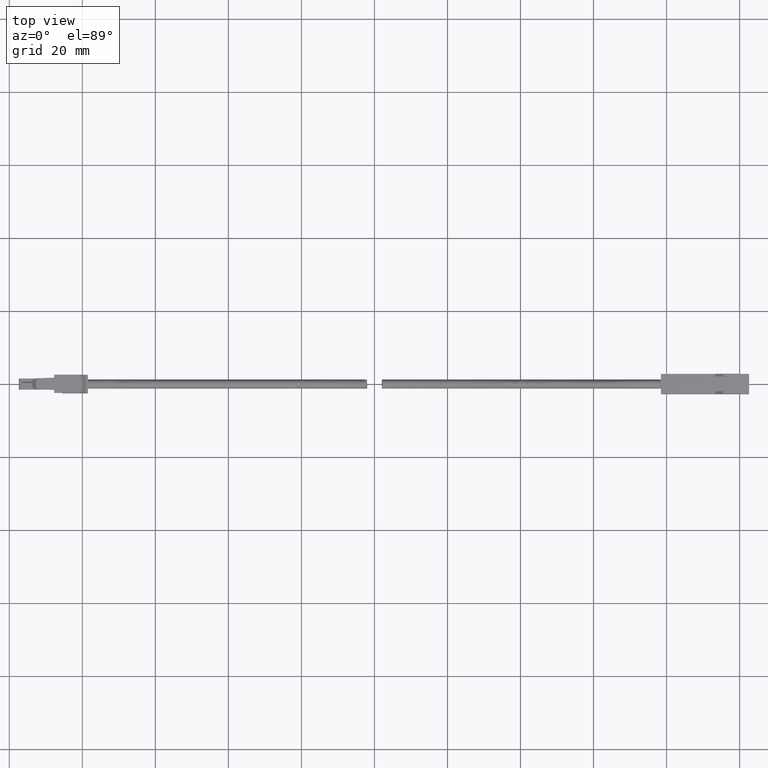
[diagram: clean part render]
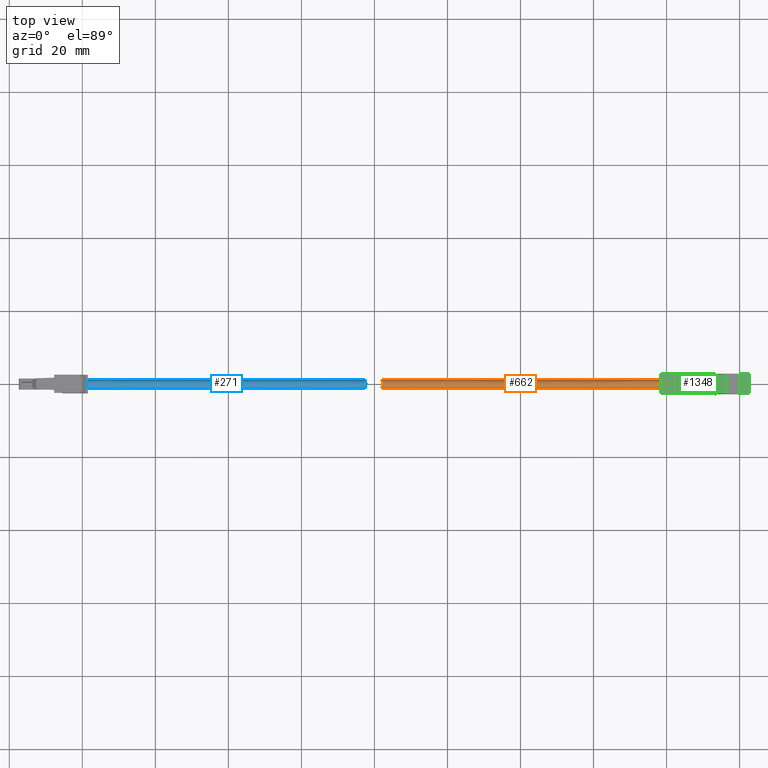
[diagram: same view with three faces highlighted in distinct colors, each labeled with its STEP entity id]
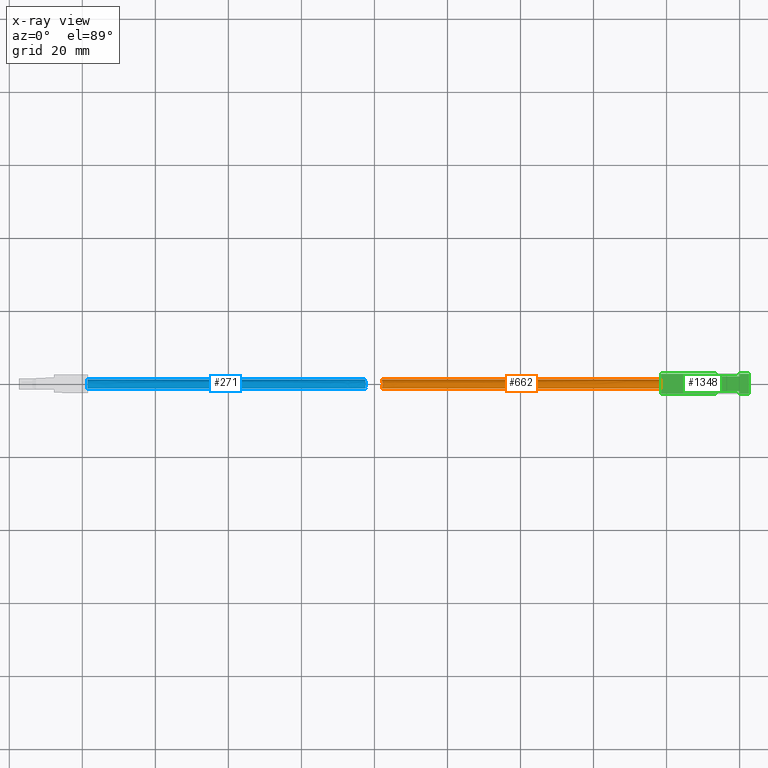
[diagram: x-ray of the same camera — body ghosted, the three highlighted faces saturated]
A machine part, top view with three faces highlighted in distinct colors.
The next image is the same camera in x-ray (body ghosted, the three faces saturated) — at least one of them is partly hidden behind the body in this view.
Their STEP definitions:

[orange] entity #662 — the highlighted face is a freeform B-spline surface patch.
#355=CARTESIAN_POINT('',(2.300000000000000,1.249999999999530,0.0));
#356=VERTEX_POINT('',#355);
#364=CARTESIAN_POINT('',(2.197703587288286,-1.246146683450683,0.098073915507565));
#365=VERTEX_POINT('',#364);
#375=CARTESIAN_POINT('',(2.197703587288286,-1.246146683450683,0.098073915507565));
#376=CARTESIAN_POINT('',(2.185782413458197,-1.245072543111019,0.111723513627514));
#377=CARTESIAN_POINT('',(2.174324032663256,-1.243740976383480,0.125777891205696));
#378=CARTESIAN_POINT('',(2.150152399444206,-1.240150894217720,0.157575884010219));
#379=CARTESIAN_POINT('',(2.137587745248053,-1.237746024540212,0.175586971182269));
#380=CARTESIAN_POINT('',(2.102391724294224,-1.229086220610575,0.230718967803821));
#381=CARTESIAN_POINT('',(2.082384264155761,-1.221451035759141,0.268638884079529));
#382=CARTESIAN_POINT('',(2.057204897359141,-1.206645900087304,0.326967884832802));
#383=CARTESIAN_POINT('',(2.049620526136303,-1.201151445529674,0.346653849750198));
#384=CARTESIAN_POINT('',(2.036047233575883,-1.188936580613859,0.386475733568241));
#385=CARTESIAN_POINT('',(2.030039941074703,-1.182178500881842,0.406705290797513));
#386=CARTESIAN_POINT('',(2.014672526968635,-1.160324731184317,0.466869904066858));
#387=CARTESIAN_POINT('',(2.007834449006401,-1.143597052290673,0.506532353235339));
#388=CARTESIAN_POINT('',(2.000047393343356,-1.105650132167661,0.584745266418900));
#389=CARTESIAN_POINT('',(1.999139374120442,-1.084237957922289,0.623571422937116));
#390=CARTESIAN_POINT('',(2.002452720152221,-1.037997499711809,0.697835552834510));
#391=CARTESIAN_POINT('',(2.006615844592895,-1.013126269333457,0.733450871297083));
#392=CARTESIAN_POINT('',(2.018983361681790,-0.959942353971602,0.801801531177356));
#393=CARTESIAN_POINT('',(2.027253799614945,-0.931480907841922,0.834658308277487));
#394=CARTESIAN_POINT('',(2.056235751460511,-0.843091401251553,0.926791121989664));
#395=CARTESIAN_POINT('',(2.081159588162684,-0.779673038228312,0.980549406130930));
#396=CARTESIAN_POINT('',(2.122311456749226,-0.677473750735115,1.051306838405805));
#397=CARTESIAN_POINT('',(2.136717463016618,-0.642094983922010,1.073271701790091));
#398=CARTESIAN_POINT('',(2.165507032297764,-0.570012268132028,1.113231391514373));
#399=CARTESIAN_POINT('',(2.179946675246814,-0.533179737340535,1.131331175330846));
#400=CARTESIAN_POINT('',(2.208008731032904,-0.457673552880847,1.163926880269215));
#401=CARTESIAN_POINT('',(2.221636055987656,-0.419002006019938,1.178423597482248));
#402=CARTESIAN_POINT('',(2.246950718593400,-0.339394740158768,1.203767448427925));
#403=CARTESIAN_POINT('',(2.258685979961521,-0.298210537216375,1.214653057001899));
#404=CARTESIAN_POINT('',(2.278317908500439,-0.214896548693261,1.232124608312110));
#405=CARTESIAN_POINT('',(2.286259964890770,-0.172646552497843,1.238772931898442));
#406=CARTESIAN_POINT('',(2.294418586061707,-0.108213386999522,1.245494334762032));
#407=CARTESIAN_POINT('',(2.296513083925073,-0.086559173581023,1.247191216253681));
#408=CARTESIAN_POINT('',(2.299319051363220,-0.042870537355216,1.249456097419914));
#409=CARTESIAN_POINT('',(2.300024922533960,-0.020747115649442,1.250019977845877));
#410=CARTESIAN_POINT('',(2.299896816676956,0.088845394679168,1.249917279566500));
#411=CARTESIAN_POINT('',(2.287958062092116,0.174469806817529,1.240728774839407));
#412=CARTESIAN_POINT('',(2.248202641099639,0.342205259053392,1.205297960501625));
#413=CARTESIAN_POINT('',(2.221695874154388,0.420912699519135,1.179868940310255));
#414=CARTESIAN_POINT('',(2.179596984373239,0.534086613929089,1.130902752438372));
#415=CARTESIAN_POINT('',(2.165129930116893,0.570970122158411,1.112746225082192));
#416=CARTESIAN_POINT('',(2.136236119684083,0.643286178403536,1.072564187698500));
#417=CARTESIAN_POINT('',(2.121941959521678,0.678386024216780,1.050710106541648));
#418=CARTESIAN_POINT('',(2.081026654996795,0.780014238944487,0.980242375140573));
#419=CARTESIAN_POINT('',(2.056160459278299,0.843286603496433,0.926621590684601));
#420=CARTESIAN_POINT('',(2.027174050815090,0.931741560899679,0.834369600480567));
#421=CARTESIAN_POINT('',(2.018920977522754,0.960182550180733,0.801507586211124));
#422=CARTESIAN_POINT('',(2.006603433026471,1.013208108167032,0.733330942128864));
#423=CARTESIAN_POINT('',(2.002456435175281,1.038004796193899,0.697816243338594));
#424=CARTESIAN_POINT('',(1.999144475239803,1.084108456566257,0.623787080002903));
#425=CARTESIAN_POINT('',(2.000041568638022,1.105573423945592,0.584888415088782));
#426=CARTESIAN_POINT('',(2.007806643422295,1.143509469319251,0.506727883125431));
#427=CARTESIAN_POINT('',(2.014612332009462,1.160135241973207,0.467297094493345));
#428=CARTESIAN_POINT('',(2.029730351707489,1.181788428166470,0.407824962718867));
#429=CARTESIAN_POINT('',(2.035590467644217,1.188457625566541,0.387946725776752));
#430=CARTESIAN_POINT('',(2.049079550934947,1.200727675405017,0.348119576097644));
#431=CARTESIAN_POINT('',(2.056757930026439,1.206349438906517,0.328072181703095));
#432=CARTESIAN_POINT('',(2.082092541801532,1.221344511017660,0.269181878610023));
#433=CARTESIAN_POINT('',(2.102106823552305,1.228973274423302,0.231269455601058));
#434=CARTESIAN_POINT('',(2.148500555071759,1.240472930651238,0.158391219727604));
#435=CARTESIAN_POINT('',(2.175154113231522,1.244350471988203,0.123146480366651));
#436=CARTESIAN_POINT('',(2.233699889804818,1.249092581529827,0.057800306142103));
#437=CARTESIAN_POINT('',(2.265545421407985,1.250000000017405,0.027621087124736));
#438=CARTESIAN_POINT('',(2.300000000000000,1.249999999999530,0.0));
#439=B_SPLINE_CURVE_WITH_KNOTS('',3,(#375,#376,#377,#378,#379,#380,#381,#382,#383,#384,#385,#386,#387,#388,#389,#390,#391,#392,#393,#394,#395,#396,#397,#398,#399,#400,#401,#402,#403,#404,#405,#406,#407,#408,#409,#410,#411,#412,#413,#414,#415,#416,#417,#418,#419,#420,#421,#422,#423,#424,#425,#426,#427,#428,#429,#430,#431,#432,#433,#434,#435,#436,#437,#438),.UNSPECIFIED.,.F.,.U.,(4,2,2,2,2,2,2,2,2,2,2,2,2,2,2,2,2,2,2,2,2,2,2,2,2,2,2,2,2,2,2,4),(0.033844311896491,0.046875000000000,0.062500000000000,0.093749999999999,0.109374999999999,0.124999999999999,0.156249999999999,0.187499999999999,0.218749999999999,0.249999999999999,0.312499999999999,0.343749999999998,0.374999999999998,0.406249999999998,0.437499999999998,0.468749999999998,0.484374999999998,0.499999999999998,0.562499999999998,0.624999999999998,0.656249999999998,0.687499999999999,0.749999999999999,0.781249999999999,0.812499999999999,0.843749999999999,0.874999999999999,0.890624999999999,0.906249999999999,0.937499999999999,0.968750000000000,1.0),.UNSPECIFIED.);
#440=EDGE_CURVE('',#365,#356,#439,.T.);
#460=CARTESIAN_POINT('',(2.402294953251520,1.246146447890810,-0.098073873213585));
#461=VERTEX_POINT('',#460);
#462=CARTESIAN_POINT('',(2.402294953251520,1.246146447890810,-0.098073873213585));
#463=CARTESIAN_POINT('',(2.400070123243016,1.246347270529622,-0.095525523526263));
#464=CARTESIAN_POINT('',(2.397829347704910,1.246538975255356,-0.092991821916617));
#465=CARTESIAN_POINT('',(2.366300117965674,1.249092716896253,-0.057800310032570));
#466=CARTESIAN_POINT('',(2.334454582486053,1.250000067771847,-0.027621089067394));
#467=CARTESIAN_POINT('',(2.300000000000000,1.249999999999530,0.0));
#468=B_SPLINE_CURVE_WITH_KNOTS('',3,(#462,#463,#464,#465,#466,#467),.UNSPECIFIED.,.F.,.U.,(4,2,4),(0.966341268069300,0.968750000000000,1.0),.UNSPECIFIED.);
#469=EDGE_CURVE('',#461,#356,#468,.T.);
#560=CARTESIAN_POINT('',(78.542103939511691,1.246146667071423,-0.098073870866729));
#561=VERTEX_POINT('',#560);
#562=CARTESIAN_POINT('',(78.542103939511691,1.246146667071423,-0.098073870866729));
#563=CARTESIAN_POINT('',(2.402294953251520,1.246146447890810,-0.098073873213585));
#564=QUASI_UNIFORM_CURVE('',1,(#562,#563),.UNSPECIFIED.,.F.,.U.);
#565=EDGE_CURVE('',#561,#461,#564,.T.);
#582=CARTESIAN_POINT('',(78.542103939511691,-1.246146667071423,0.098073870866729));
#583=VERTEX_POINT('',#582);
#599=CARTESIAN_POINT('',(78.542103939511691,-1.246146667071423,0.098073870866729));
#600=CARTESIAN_POINT('',(2.197703587288286,-1.246146683450683,0.098073915507565));
#601=QUASI_UNIFORM_CURVE('',1,(#599,#600),.UNSPECIFIED.,.F.,.U.);
#602=EDGE_CURVE('',#583,#365,#601,.T.);
#608=CARTESIAN_POINT('',(80.455560768116257,-1.246146667166409,0.098073869659806));
#609=CARTESIAN_POINT('',(80.455560768116257,-1.148072797506603,1.344220536826216));
#610=CARTESIAN_POINT('',(80.455560768116257,0.098073869659806,1.246146667166409));
#611=CARTESIAN_POINT('',(80.455560768116257,1.344220536826216,1.148072797506603));
#612=CARTESIAN_POINT('',(80.455560768116257,1.246146667166409,-0.098073869659806));
#613=CARTESIAN_POINT('',(0.042537546009797,-1.246146667166409,0.098073869659806));
#614=CARTESIAN_POINT('',(0.042537546009797,-1.148072797506603,1.344220536826216));
#615=CARTESIAN_POINT('',(0.042537546009797,0.098073869659806,1.246146667166409));
#616=CARTESIAN_POINT('',(0.042537546009797,1.344220536826216,1.148072797506603));
#617=CARTESIAN_POINT('',(0.042537546009797,1.246146667166409,-0.098073869659806));
#625=(BOUNDED_SURFACE()B_SPLINE_SURFACE(2,1,((#608,#613),(#609,#614),(#610,#615),(#611,#616),(#612,#617)),.UNSPECIFIED.,.F.,.F.,.U.)B_SPLINE_SURFACE_WITH_KNOTS((3,2,3),(2,2),(0.0,1.570796326794897,3.141592653589793),(0.0,80.413023222106474),.UNSPECIFIED.)GEOMETRIC_REPRESENTATION_ITEM()RATIONAL_B_SPLINE_SURFACE(((1.0,1.0),(0.707106781186548,0.707106781186548),(1.0,1.0),(0.707106781186548,0.707106781186548),(1.0,1.0)))REPRESENTATION_ITEM('')SURFACE());
#626=ORIENTED_EDGE('',*,*,#469,.T.);
#627=ORIENTED_EDGE('',*,*,#440,.F.);
#628=ORIENTED_EDGE('',*,*,#602,.F.);
#629=CARTESIAN_POINT('',(78.542103939511691,0.0,1.250000000000000));
#630=VERTEX_POINT('',#629);
#631=CARTESIAN_POINT('',(78.542103939511691,0.0,1.250000000000000));
#632=CARTESIAN_POINT('',(78.542103939511676,-1.155488113450180,1.250000000000000));
#633=CARTESIAN_POINT('',(78.542103939511705,-1.246146667071423,0.098073870866729));
#641=(BOUNDED_CURVE()B_SPLINE_CURVE(2,(#631,#632,#633),.UNSPECIFIED.,.F.,.U.)B_SPLINE_CURVE_WITH_KNOTS((3,3),(0.0,0.236331300466738),.UNSPECIFIED.)CURVE()GEOMETRIC_REPRESENTATION_ITEM()RATIONAL_B_SPLINE_CURVE((1.0,0.723120658799712,0.969723355825326))REPRESENTATION_ITEM(''));
#642=EDGE_CURVE('',#630,#583,#641,.T.);
#643=ORIENTED_EDGE('',*,*,#642,.F.);
#644=CARTESIAN_POINT('',(78.542103939511691,1.246146667071423,-0.098073870866729));
#645=CARTESIAN_POINT('',(78.542103939511676,1.250000000000000,-0.049112634365849));
#646=CARTESIAN_POINT('',(78.542103939511691,1.250000000000000,0.0));
#647=CARTESIAN_POINT('',(78.542103939511691,1.250000000000000,1.250000000000000));
#648=CARTESIAN_POINT('',(78.542103939511691,0.0,1.250000000000000));
#656=(BOUNDED_CURVE()B_SPLINE_CURVE(2,(#644,#645,#646,#647,#648),.UNSPECIFIED.,.F.,.U.)B_SPLINE_CURVE_WITH_KNOTS((3,2,3),(0.736331300466738,0.750000000000000,1.0),.UNSPECIFIED.)CURVE()GEOMETRIC_REPRESENTATION_ITEM()RATIONAL_B_SPLINE_CURVE((0.969723355825326,0.983986122386836,1.0,0.707106781186548,1.0))REPRESENTATION_ITEM(''));
#657=EDGE_CURVE('',#561,#630,#656,.T.);
#658=ORIENTED_EDGE('',*,*,#657,.F.);
#659=ORIENTED_EDGE('',*,*,#565,.T.);
#660=EDGE_LOOP('',(#626,#627,#628,#643,#658,#659));
#661=FACE_OUTER_BOUND('',#660,.T.);
#662=ADVANCED_FACE('',(#661),#625,.T.);

[blue] entity #271 — the highlighted face is a freeform B-spline surface patch.
#21=CARTESIAN_POINT('',(-2.300000000000000,-1.250000000000306,-5.140745E-017));
#22=VERTEX_POINT('',#21);
#28=CARTESIAN_POINT('',(-2.197703587288286,-1.246146683450683,-0.098073915507565));
#29=VERTEX_POINT('',#28);
#30=CARTESIAN_POINT('',(-2.300000000000000,-1.250000000000306,-5.140745E-017));
#31=CARTESIAN_POINT('',(-2.265584432712960,-1.249999994447209,-0.027589798652399));
#32=CARTESIAN_POINT('',(-2.233909581820482,-1.249092285933007,-0.057621688510491));
#33=CARTESIAN_POINT('',(-2.202468764679368,-1.246564187051494,-0.092654896907182));
#34=CARTESIAN_POINT('',(-2.200077003932020,-1.246360537160404,-0.095356383921207));
#35=CARTESIAN_POINT('',(-2.197703587288286,-1.246146683450683,-0.098073915507565));
#36=B_SPLINE_CURVE_WITH_KNOTS('',3,(#30,#31,#32,#33,#34,#35),.UNSPECIFIED.,.F.,.U.,(4,2,4),(0.0,0.031250000000000,0.033844311896491),.UNSPECIFIED.);
#37=EDGE_CURVE('',#22,#29,#36,.T.);
#124=CARTESIAN_POINT('',(-2.402294953251520,1.246146447890810,0.098073873213586));
#125=VERTEX_POINT('',#124);
#135=CARTESIAN_POINT('',(-2.300000000000000,-1.250000000000306,-5.140745E-017));
#136=CARTESIAN_POINT('',(-2.334415558930241,-1.249999999782653,0.027589806405144));
#137=CARTESIAN_POINT('',(-2.366090401520643,-1.249092296492798,0.057621703971694));
#138=CARTESIAN_POINT('',(-2.409636504318490,-1.245590840231304,0.106143359183186));
#139=CARTESIAN_POINT('',(-2.423487587592960,-1.244066017152474,0.122899119174809));
#140=CARTESIAN_POINT('',(-2.449847573671176,-1.240150910194515,0.157575909052635));
#141=CARTESIAN_POINT('',(-2.462412227898396,-1.237746040192025,0.175586996221835));
#142=CARTESIAN_POINT('',(-2.497608248968650,-1.229086235155734,0.230718992823241));
#143=CARTESIAN_POINT('',(-2.517615709214768,-1.221451049398411,0.268638909070330));
#144=CARTESIAN_POINT('',(-2.542795076226767,-1.206645912062528,0.326967909753720));
#145=CARTESIAN_POINT('',(-2.550379447530393,-1.201151456899290,0.346653874643324));
#146=CARTESIAN_POINT('',(-2.563952740272077,-1.188936590660330,0.386475758395973));
#147=CARTESIAN_POINT('',(-2.569960032874304,-1.182178510206865,0.406705315587414));
#148=CARTESIAN_POINT('',(-2.585327447309269,-1.160324738206229,0.466869928729789));
#149=CARTESIAN_POINT('',(-2.592165525525853,-1.143597057585973,0.506532377795442));
#150=CARTESIAN_POINT('',(-2.599952581770363,-1.105650133608498,0.584745290736037));
#151=CARTESIAN_POINT('',(-2.600860601323395,-1.084237957216325,0.623571447112780));
#152=CARTESIAN_POINT('',(-2.597547256007922,-1.037997494417213,0.697835576697276));
#153=CARTESIAN_POINT('',(-2.593384131954063,-1.013126261592226,0.733450894988217));
#154=CARTESIAN_POINT('',(-2.581016615694896,-0.959942341034504,0.801801554495890));
#155=CARTESIAN_POINT('',(-2.572746178206998,-0.931480892141381,0.834658331393960));
#156=CARTESIAN_POINT('',(-2.543764227747229,-0.843091377010901,0.926791144472087));
#157=CARTESIAN_POINT('',(-2.518840392043102,-0.779673007912647,0.980549428150282));
#158=CARTESIAN_POINT('',(-2.477688525068735,-0.677473710682709,1.051306859670641));
#159=CARTESIAN_POINT('',(-2.463282519360044,-0.642094940507480,1.073271722792414));
#160=CARTESIAN_POINT('',(-2.434492951218176,-0.570012217880555,1.113231411979777));
#161=CARTESIAN_POINT('',(-2.420053308851730,-0.533179683601956,1.131331195520901));
#162=CARTESIAN_POINT('',(-2.391991254260621,-0.457673492002885,1.163926899893389));
#163=CARTESIAN_POINT('',(-2.378363929918218,-0.419001941489913,1.178423616815902));
#164=CARTESIAN_POINT('',(-2.353049268573393,-0.339394668115961,1.203767467162727));
#165=CARTESIAN_POINT('',(-2.341314007857779,-0.298210461289424,1.214653075426495));
#166=CARTESIAN_POINT('',(-2.321682080638917,-0.214896464909678,1.232124626109042));
#167=CARTESIAN_POINT('',(-2.313740024918036,-0.172646464730374,1.238772949377020));
#168=CARTESIAN_POINT('',(-2.305581404767879,-0.108213293154224,1.245494351755451));
#169=CARTESIAN_POINT('',(-2.303486907247544,-0.086559077692779,1.247191233084107));
#170=CARTESIAN_POINT('',(-2.300680940501408,-0.042870437344194,1.249456113921650));
#171=CARTESIAN_POINT('',(-2.299975069681060,-0.020747013550179,1.250019994181247));
#172=CARTESIAN_POINT('',(-2.300103177273586,0.088845507125705,1.249917295078182));
#173=CARTESIAN_POINT('',(-2.312041933213653,0.174469927358565,1.240728789709128));
#174=CARTESIAN_POINT('',(-2.351797356861058,0.342205395450165,1.205297974113589));
#175=CARTESIAN_POINT('',(-2.378304125052234,0.420912843354053,1.179868953331734));
#176=CARTESIAN_POINT('',(-2.420403016626764,0.534086768433411,1.130902764606755));
#177=CARTESIAN_POINT('',(-2.434870071467895,0.570970280135437,1.112746236971855));
#178=CARTESIAN_POINT('',(-2.463763883048179,0.643286343176670,1.072564199039716));
#179=CARTESIAN_POINT('',(-2.478058043767998,0.678386192282009,1.050710117615653));
#180=CARTESIAN_POINT('',(-2.518973349908552,0.780014416517481,0.980242385437134));
#181=CARTESIAN_POINT('',(-2.543839546635283,0.843286786956162,0.926621600492056));
#182=CARTESIAN_POINT('',(-2.572825956513268,0.931741752515702,0.834369609592844));
#183=CARTESIAN_POINT('',(-2.581079030261468,0.960182744405683,0.801507595097768));
#184=CARTESIAN_POINT('',(-2.593396575609951,1.013208307224264,0.733330950589890));
#185=CARTESIAN_POINT('',(-2.597543573860860,1.038004997494155,0.697816251597986));
#186=CARTESIAN_POINT('',(-2.600855534542359,1.084108661997282,0.623787087881243));
#187=CARTESIAN_POINT('',(-2.599958441493047,1.105573631277870,0.584888422786299));
#188=CARTESIAN_POINT('',(-2.592193367328989,1.143509679961792,0.506727890495606));
#189=CARTESIAN_POINT('',(-2.585387679015604,1.160135454039038,0.467297101715792));
#190=CARTESIAN_POINT('',(-2.570269659677452,1.181788642039894,0.407824969741750));
#191=CARTESIAN_POINT('',(-2.564409543852199,1.188457839987844,0.387946732736792));
#192=CARTESIAN_POINT('',(-2.550920460767935,1.200727890815177,0.348119582939089));
#193=CARTESIAN_POINT('',(-2.543242081771798,1.206349654759160,0.328072188488557));
#194=CARTESIAN_POINT('',(-2.517907470253411,1.221344728017567,0.269181885241032));
#195=CARTESIAN_POINT('',(-2.497893188636704,1.228973491958467,0.231269462145962));
#196=CARTESIAN_POINT('',(-2.453287458318561,1.240029955436990,0.161199932273177));
#197=CARTESIAN_POINT('',(-2.428934243903847,1.243741809379859,0.128586871063241));
#198=CARTESIAN_POINT('',(-2.402294953251520,1.246146447890810,0.098073873213586));
#199=B_SPLINE_CURVE_WITH_KNOTS('',3,(#135,#136,#137,#138,#139,#140,#141,#142,#143,#144,#145,#146,#147,#148,#149,#150,#151,#152,#153,#154,#155,#156,#157,#158,#159,#160,#161,#162,#163,#164,#165,#166,#167,#168,#169,#170,#171,#172,#173,#174,#175,#176,#177,#178,#179,#180,#181,#182,#183,#184,#185,#186,#187,#188,#189,#190,#191,#192,#193,#194,#195,#196,#197,#198),.UNSPECIFIED.,.F.,.U.,(4,2,2,2,2,2,2,2,2,2,2,2,2,2,2,2,2,2,2,2,2,2,2,2,2,2,2,2,2,2,2,4),(0.0,0.031250000000000,0.046875000000000,0.062499999999999,0.093749999999999,0.109374999999999,0.124999999999999,0.156249999999999,0.187499999999999,0.218749999999999,0.249999999999999,0.312499999999999,0.343749999999999,0.374999999999999,0.406249999999999,0.437499999999999,0.468749999999999,0.484374999999999,0.499999999999999,0.562499999999999,0.624999999999999,0.656249999999999,0.687499999999999,0.750000000000000,0.781250000000000,0.812500000000000,0.843750000000000,0.875000000000000,0.890625000000000,0.906250000000000,0.937500000000000,0.966341268069300),.UNSPECIFIED.);
#200=EDGE_CURVE('',#22,#125,#199,.T.);
#205=CARTESIAN_POINT('',(-80.455560768116257,1.246146667166409,0.098073869659816));
#206=CARTESIAN_POINT('',(-80.455560768116257,1.148072797506603,1.344220536826225));
#207=CARTESIAN_POINT('',(-80.455560768116257,-0.098073869659806,1.246146667166419));
#208=CARTESIAN_POINT('',(-80.455560768116257,-1.344220536826216,1.148072797506613));
#209=CARTESIAN_POINT('',(-80.455560768116257,-1.246146667166409,-0.098073869659796));
#210=CARTESIAN_POINT('',(-0.042537546009797,1.246146667166409,0.098073869659806));
#211=CARTESIAN_POINT('',(-0.042537546009797,1.148072797506603,1.344220536826216));
#212=CARTESIAN_POINT('',(-0.042537546009797,-0.098073869659806,1.246146667166409));
#213=CARTESIAN_POINT('',(-0.042537546009797,-1.344220536826216,1.148072797506603));
#214=CARTESIAN_POINT('',(-0.042537546009797,-1.246146667166409,-0.098073869659806));
#222=(BOUNDED_SURFACE()B_SPLINE_SURFACE(2,1,((#205,#210),(#206,#211),(#207,#212),(#208,#213),(#209,#214)),.UNSPECIFIED.,.F.,.F.,.U.)B_SPLINE_SURFACE_WITH_KNOTS((3,2,3),(2,2),(3.141592653589793,4.712388980384690,6.283185307179586),(0.0,80.413023222106474),.UNSPECIFIED.)GEOMETRIC_REPRESENTATION_ITEM()RATIONAL_B_SPLINE_SURFACE(((1.0,1.0),(0.707106781186548,0.707106781186548),(1.0,1.0),(0.707106781186548,0.707106781186548),(1.0,1.0)))REPRESENTATION_ITEM('')SURFACE());
#223=ORIENTED_EDGE('',*,*,#200,.T.);
#224=CARTESIAN_POINT('',(-78.542103939511691,1.246146667071423,0.098073870866739));
#225=VERTEX_POINT('',#224);
#226=CARTESIAN_POINT('',(-78.542103939511691,1.246146667071423,0.098073870866739));
#227=CARTESIAN_POINT('',(-2.402294953251520,1.246146447890810,0.098073873213586));
#228=QUASI_UNIFORM_CURVE('',1,(#226,#227),.UNSPECIFIED.,.F.,.U.);
#229=EDGE_CURVE('',#225,#125,#228,.T.);
#230=ORIENTED_EDGE('',*,*,#229,.F.);
#231=CARTESIAN_POINT('',(-78.542103939511691,0.0,1.250000000000010));
#232=VERTEX_POINT('',#231);
#233=CARTESIAN_POINT('',(-78.542103939511691,0.0,1.250000000000010));
#234=CARTESIAN_POINT('',(-78.542103939511691,1.155488113450181,1.250000000000010));
#235=CARTESIAN_POINT('',(-78.542103939511691,1.246146667071423,0.098073870866738));
#243=(BOUNDED_CURVE()B_SPLINE_CURVE(2,(#233,#234,#235),.UNSPECIFIED.,.F.,.U.)B_SPLINE_CURVE_WITH_KNOTS((3,3),(0.500000000000000,0.736331300466738),.UNSPECIFIED.)CURVE()GEOMETRIC_REPRESENTATION_ITEM()RATIONAL_B_SPLINE_CURVE((1.0,0.723120658799711,0.969723355825326))REPRESENTATION_ITEM(''));
#244=EDGE_CURVE('',#232,#225,#243,.T.);
#245=ORIENTED_EDGE('',*,*,#244,.F.);
#246=CARTESIAN_POINT('',(-78.542103939511691,-1.246146667071423,-0.098073870866719));
#247=VERTEX_POINT('',#246);
#248=CARTESIAN_POINT('',(-78.542103939511705,-1.246146667071423,-0.098073870866719));
#249=CARTESIAN_POINT('',(-78.542103939511705,-1.250000000000000,-0.049112634365839));
#250=CARTESIAN_POINT('',(-78.542103939511691,-1.250000000000000,9.618316E-015));
#251=CARTESIAN_POINT('',(-78.542103939511691,-1.250000000000000,1.250000000000010));
#252=CARTESIAN_POINT('',(-78.542103939511691,0.0,1.250000000000010));
#260=(BOUNDED_CURVE()B_SPLINE_CURVE(2,(#248,#249,#250,#251,#252),.UNSPECIFIED.,.F.,.U.)B_SPLINE_CURVE_WITH_KNOTS((3,2,3),(0.236331300466738,0.250000000000000,0.500000000000000),.UNSPECIFIED.)CURVE()GEOMETRIC_REPRESENTATION_ITEM()RATIONAL_B_SPLINE_CURVE((0.969723355825326,0.983986122386836,1.0,0.707106781186548,1.0))REPRESENTATION_ITEM(''));
#261=EDGE_CURVE('',#247,#232,#260,.T.);
#262=ORIENTED_EDGE('',*,*,#261,.F.);
#263=CARTESIAN_POINT('',(-78.542103939511691,-1.246146667071423,-0.098073870866719));
#264=CARTESIAN_POINT('',(-2.197703587288286,-1.246146683450683,-0.098073915507565));
#265=QUASI_UNIFORM_CURVE('',1,(#263,#264),.UNSPECIFIED.,.F.,.U.);
#266=EDGE_CURVE('',#247,#29,#265,.T.);
#267=ORIENTED_EDGE('',*,*,#266,.T.);
#268=ORIENTED_EDGE('',*,*,#37,.F.);
#269=EDGE_LOOP('',(#223,#230,#245,#262,#267,#268));
#270=FACE_OUTER_BOUND('',#269,.T.);
#271=ADVANCED_FACE('',(#270),#222,.T.);

[green] entity #1348 — the highlighted face is a freeform B-spline surface patch.
#878=CARTESIAN_POINT('',(102.616842711578000,-2.741321472613190,3.177630938473670));
#879=VERTEX_POINT('',#878);
#892=CARTESIAN_POINT('',(102.616842711578000,2.741321472612300,3.177630938473670));
#893=VERTEX_POINT('',#892);
#899=CARTESIAN_POINT('',(102.616842711578000,2.741321472612300,3.177630938473670));
#900=CARTESIAN_POINT('',(102.616842711578000,-2.741321472613190,3.177630938473670));
#901=QUASI_UNIFORM_CURVE('',1,(#899,#900),.UNSPECIFIED.,.F.,.U.);
#902=EDGE_CURVE('',#893,#879,#901,.T.);
#1071=CARTESIAN_POINT('',(100.000507041796200,-2.056308005580960,3.177630938473670));
#1072=VERTEX_POINT('',#1071);
#1078=CARTESIAN_POINT('',(93.333921501817102,-2.056308005581030,3.177630938473675));
#1079=VERTEX_POINT('',#1078);
#1080=CARTESIAN_POINT('',(100.000507041796200,-2.056308005580960,3.177630938473670));
#1081=CARTESIAN_POINT('',(93.333921501817102,-2.056308005581030,3.177630938473675));
#1082=QUASI_UNIFORM_CURVE('',1,(#1080,#1081),.UNSPECIFIED.,.F.,.U.);
#1083=EDGE_CURVE('',#1072,#1079,#1082,.T.);
#1120=CARTESIAN_POINT('',(93.333921501817102,2.055800963785435,3.177630938473670));
#1121=VERTEX_POINT('',#1120);
#1122=CARTESIAN_POINT('',(100.000507041796200,2.055800963785550,3.177630938473670));
#1123=VERTEX_POINT('',#1122);
#1124=CARTESIAN_POINT('',(93.333921501817102,2.055800963785435,3.177630938473670));
#1125=CARTESIAN_POINT('',(100.000507041796200,2.055800963785550,3.177630938473670));
#1126=QUASI_UNIFORM_CURVE('',1,(#1124,#1125),.UNSPECIFIED.,.F.,.U.);
#1127=EDGE_CURVE('',#1121,#1123,#1126,.T.);
#1157=CARTESIAN_POINT('',(100.000507041796200,-2.741321472613190,3.177630938473670));
#1158=VERTEX_POINT('',#1157);
#1159=CARTESIAN_POINT('',(102.616842711578000,-2.741321472613190,3.177630938473670));
#1160=CARTESIAN_POINT('',(100.000507041796200,-2.741321472613190,3.177630938473670));
#1161=QUASI_UNIFORM_CURVE('',1,(#1159,#1160),.UNSPECIFIED.,.F.,.U.);
#1162=EDGE_CURVE('',#879,#1158,#1161,.T.);
#1178=CARTESIAN_POINT('',(93.333921501817102,-2.741321472613190,3.177630938473670));
#1179=VERTEX_POINT('',#1178);
#1185=CARTESIAN_POINT('',(78.442103939511711,-2.741321472613190,3.177630938473670));
#1186=VERTEX_POINT('',#1185);
#1187=CARTESIAN_POINT('',(93.333921501817102,-2.741321472613190,3.177630938473670));
#1188=CARTESIAN_POINT('',(78.442103939511711,-2.741321472613190,3.177630938473670));
#1189=QUASI_UNIFORM_CURVE('',1,(#1187,#1188),.UNSPECIFIED.,.F.,.U.);
#1190=EDGE_CURVE('',#1179,#1186,#1189,.T.);
#1220=CARTESIAN_POINT('',(78.442103939511711,2.741321472612300,3.177630938473670));
#1221=VERTEX_POINT('',#1220);
#1227=CARTESIAN_POINT('',(93.333921501817102,2.741321472612300,3.177630938473670));
#1228=VERTEX_POINT('',#1227);
#1229=CARTESIAN_POINT('',(93.333921501817102,2.741321472612300,3.177630938473670));
#1230=CARTESIAN_POINT('',(78.442103939511711,2.741321472612300,3.177630938473670));
#1231=QUASI_UNIFORM_CURVE('',1,(#1229,#1230),.UNSPECIFIED.,.F.,.U.);
#1232=EDGE_CURVE('',#1228,#1221,#1231,.T.);
#1248=CARTESIAN_POINT('',(100.000507041796200,2.741321472612300,3.177630938473670));
#1249=VERTEX_POINT('',#1248);
#1255=CARTESIAN_POINT('',(102.616842711578000,2.741321472612300,3.177630938473670));
#1256=CARTESIAN_POINT('',(100.000507041796200,2.741321472612300,3.177630938473670));
#1257=QUASI_UNIFORM_CURVE('',1,(#1255,#1256),.UNSPECIFIED.,.F.,.U.);
#1258=EDGE_CURVE('',#893,#1249,#1257,.T.);
#1293=CARTESIAN_POINT('',(78.442103939511711,2.741321472612300,3.177630938473670));
#1294=CARTESIAN_POINT('',(78.442103939511711,-2.741321472613190,3.177630938473670));
#1295=QUASI_UNIFORM_CURVE('',1,(#1293,#1294),.UNSPECIFIED.,.F.,.U.);
#1296=EDGE_CURVE('',#1221,#1186,#1295,.T.);
#1313=CARTESIAN_POINT('',(77.234575784702315,-3.015179477100778,3.177630938473670));
#1314=CARTESIAN_POINT('',(103.824371514804400,-3.015179477100778,3.177630938473670));
#1315=CARTESIAN_POINT('',(77.234575784702315,3.015179624155832,3.177630938473670));
#1316=CARTESIAN_POINT('',(103.824371514804400,3.015179624155832,3.177630938473670));
#1317=B_SPLINE_SURFACE_WITH_KNOTS('',1,1,((#1313,#1315),(#1314,#1316)),.UNSPECIFIED.,.F.,.F.,.U.,(2,2),(2,2),(0.0,26.589795730102100),(0.0,6.030359101256609),.UNSPECIFIED.);
#1318=ORIENTED_EDGE('',*,*,#1190,.F.);
#1319=CARTESIAN_POINT('',(93.333921501817102,-2.056308005581030,3.177630938473675));
#1320=CARTESIAN_POINT('',(93.333921501817102,-2.741321472613190,3.177630938473670));
#1321=QUASI_UNIFORM_CURVE('',1,(#1319,#1320),.UNSPECIFIED.,.F.,.U.);
#1322=EDGE_CURVE('',#1079,#1179,#1321,.T.);
#1323=ORIENTED_EDGE('',*,*,#1322,.F.);
#1324=ORIENTED_EDGE('',*,*,#1083,.F.);
#1325=CARTESIAN_POINT('',(100.000507041796200,-2.056308005580960,3.177630938473670));
#1326=CARTESIAN_POINT('',(100.000507041796200,-2.741321472613190,3.177630938473670));
#1327=QUASI_UNIFORM_CURVE('',1,(#1325,#1326),.UNSPECIFIED.,.F.,.U.);
#1328=EDGE_CURVE('',#1072,#1158,#1327,.T.);
#1329=ORIENTED_EDGE('',*,*,#1328,.T.);
#1330=ORIENTED_EDGE('',*,*,#1162,.F.);
#1331=ORIENTED_EDGE('',*,*,#902,.F.);
#1332=ORIENTED_EDGE('',*,*,#1258,.T.);
#1333=CARTESIAN_POINT('',(100.000507041796200,2.741321472612300,3.177630938473670));
#1334=CARTESIAN_POINT('',(100.000507041796200,2.055800963785550,3.177630938473670));
#1335=QUASI_UNIFORM_CURVE('',1,(#1333,#1334),.UNSPECIFIED.,.F.,.U.);
#1336=EDGE_CURVE('',#1249,#1123,#1335,.T.);
#1337=ORIENTED_EDGE('',*,*,#1336,.T.);
#1338=ORIENTED_EDGE('',*,*,#1127,.F.);
#1339=CARTESIAN_POINT('',(93.333921501817102,2.741321472612300,3.177630938473670));
#1340=CARTESIAN_POINT('',(93.333921501817102,2.055800963785435,3.177630938473670));
#1341=QUASI_UNIFORM_CURVE('',1,(#1339,#1340),.UNSPECIFIED.,.F.,.U.);
#1342=EDGE_CURVE('',#1228,#1121,#1341,.T.);
#1343=ORIENTED_EDGE('',*,*,#1342,.F.);
#1344=ORIENTED_EDGE('',*,*,#1232,.T.);
#1345=ORIENTED_EDGE('',*,*,#1296,.T.);
#1346=EDGE_LOOP('',(#1318,#1323,#1324,#1329,#1330,#1331,#1332,#1337,#1338,#1343,#1344,#1345));
#1347=FACE_OUTER_BOUND('',#1346,.T.);
#1348=ADVANCED_FACE('',(#1347),#1317,.T.);